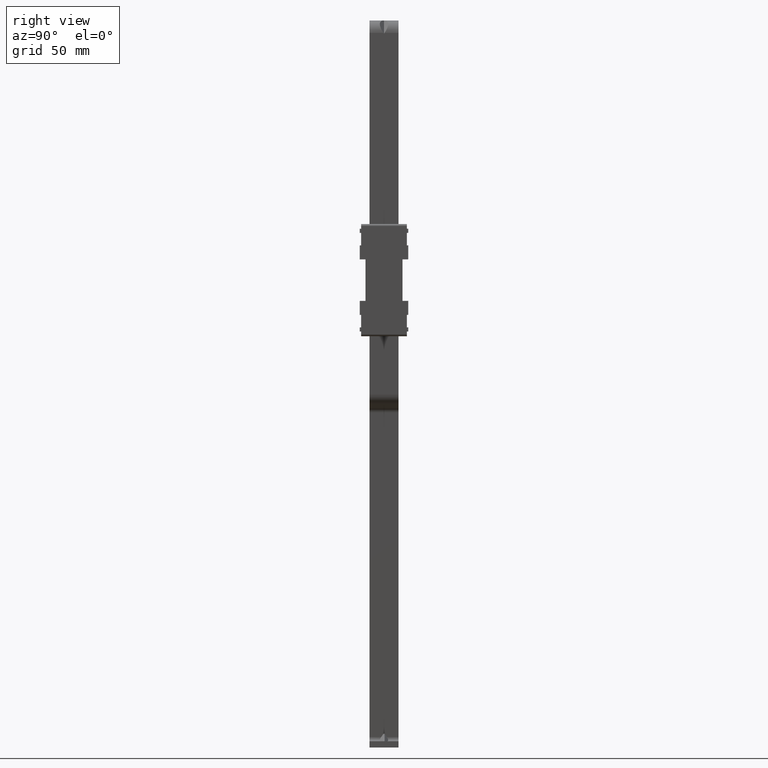
[diagram: clean part render]
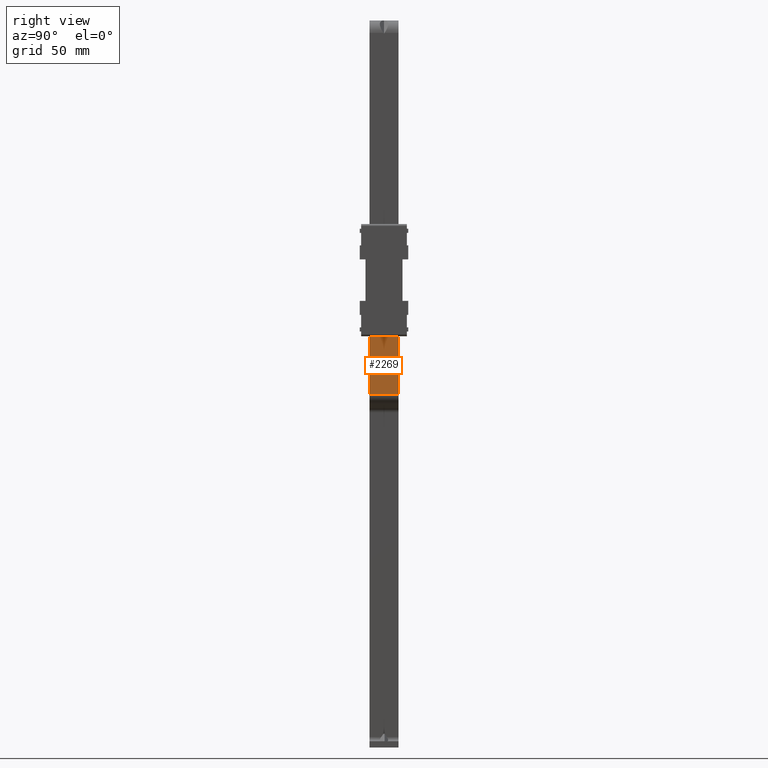
[diagram: same view with one face highlighted and labeled with its STEP entity id]
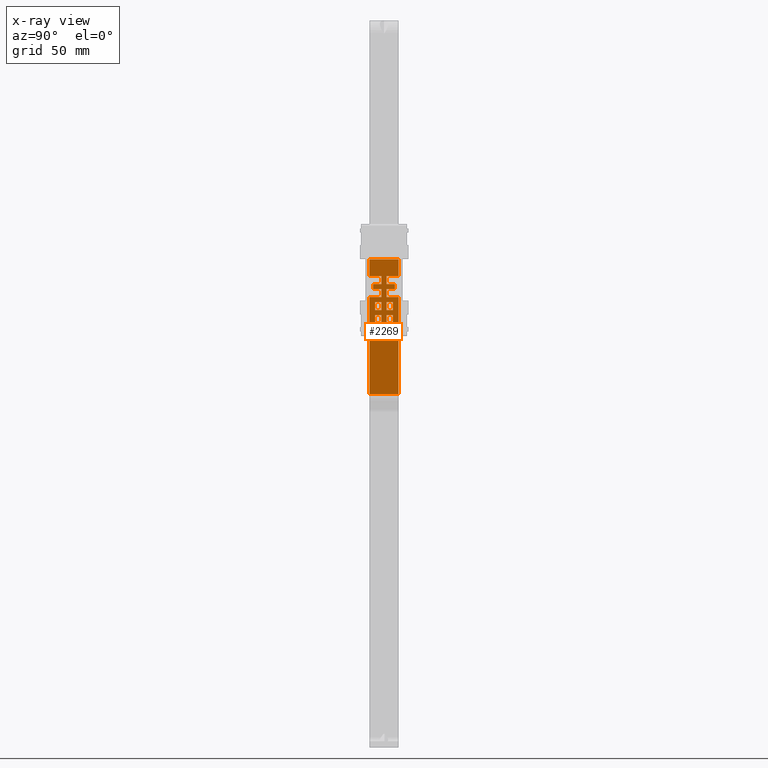
[diagram: x-ray of the same camera — body ghosted, the highlighted face saturated]
A machine part, right view. The second image highlights one B-rep face of the part: STEP entity #2269.
The next image is the same camera in x-ray: the body ghosted, the highlighted face saturated — about 0% of this face is hidden behind the body in this view.
In plain terms, the highlighted face is a freeform B-spline surface patch.
Its self-contained STEP definition (entity closure, byte-faithful):
#523=CARTESIAN_POINT('',(-8.900000041267221,-4.250000000000000,-14.460010971910920));
#524=VERTEX_POINT('',#523);
#530=CARTESIAN_POINT('',(-8.900000041267230,-1.250000000000000,-14.460010971910920));
#531=VERTEX_POINT('',#530);
#532=CARTESIAN_POINT('',(-8.900000041267230,-1.250000000000000,-14.460010971910920));
#533=CARTESIAN_POINT('',(-8.900000041267221,-4.250000000000000,-14.460010971910920));
#534=QUASI_UNIFORM_CURVE('',1,(#532,#533),.UNSPECIFIED.,.F.,.U.);
#535=EDGE_CURVE('',#531,#524,#534,.T.);
#558=CARTESIAN_POINT('',(-8.900000041267230,-1.250000000000000,-10.660010971910900));
#559=VERTEX_POINT('',#558);
#560=CARTESIAN_POINT('',(-8.900000041267230,-1.250000000000000,-10.660010971910900));
#561=CARTESIAN_POINT('',(-8.900000041267230,-1.250000000000000,-14.460010971910920));
#562=QUASI_UNIFORM_CURVE('',1,(#560,#561),.UNSPECIFIED.,.F.,.U.);
#563=EDGE_CURVE('',#559,#531,#562,.T.);
#586=CARTESIAN_POINT('',(-8.900000041267230,-4.250000000000000,-10.660010971910900));
#587=VERTEX_POINT('',#586);
#588=CARTESIAN_POINT('',(-8.900000041267230,-4.250000000000000,-10.660010971910900));
#589=CARTESIAN_POINT('',(-8.900000041267230,-1.250000000000000,-10.660010971910900));
#590=QUASI_UNIFORM_CURVE('',1,(#588,#589),.UNSPECIFIED.,.F.,.U.);
#591=EDGE_CURVE('',#587,#559,#590,.T.);
#612=CARTESIAN_POINT('',(-8.900000041267221,-4.250000000000000,-14.460010971910920));
#613=CARTESIAN_POINT('',(-8.900000041267230,-4.250000000000000,-10.660010971910900));
#614=QUASI_UNIFORM_CURVE('',1,(#612,#613),.UNSPECIFIED.,.F.,.U.);
#615=EDGE_CURVE('',#524,#587,#614,.T.);
#635=CARTESIAN_POINT('',(-8.900000041267221,1.250000000000084,-14.460010971910901));
#636=VERTEX_POINT('',#635);
#642=CARTESIAN_POINT('',(-8.900000041267230,4.250000000000000,-14.460010971910920));
#643=VERTEX_POINT('',#642);
#644=CARTESIAN_POINT('',(-8.900000041267230,4.250000000000000,-14.460010971910920));
#645=CARTESIAN_POINT('',(-8.900000041267221,1.250000000000084,-14.460010971910901));
#646=QUASI_UNIFORM_CURVE('',1,(#644,#645),.UNSPECIFIED.,.F.,.U.);
#647=EDGE_CURVE('',#643,#636,#646,.T.);
#670=CARTESIAN_POINT('',(-8.900000041267230,4.250000000000000,-10.660010971910900));
#671=VERTEX_POINT('',#670);
#672=CARTESIAN_POINT('',(-8.900000041267230,4.250000000000000,-10.660010971910900));
#673=CARTESIAN_POINT('',(-8.900000041267230,4.250000000000000,-14.460010971910920));
#674=QUASI_UNIFORM_CURVE('',1,(#672,#673),.UNSPECIFIED.,.F.,.U.);
#675=EDGE_CURVE('',#671,#643,#674,.T.);
#698=CARTESIAN_POINT('',(-8.900000041267230,1.250000000000000,-10.660010971910900));
#699=VERTEX_POINT('',#698);
#700=CARTESIAN_POINT('',(-8.900000041267230,1.250000000000000,-10.660010971910900));
#701=CARTESIAN_POINT('',(-8.900000041267230,4.250000000000000,-10.660010971910900));
#702=QUASI_UNIFORM_CURVE('',1,(#700,#701),.UNSPECIFIED.,.F.,.U.);
#703=EDGE_CURVE('',#699,#671,#702,.T.);
#724=CARTESIAN_POINT('',(-8.900000041267221,1.250000000000084,-14.460010971910901));
#725=CARTESIAN_POINT('',(-8.900000041267230,1.250000000000000,-10.660010971910900));
#726=QUASI_UNIFORM_CURVE('',1,(#724,#725),.UNSPECIFIED.,.F.,.U.);
#727=EDGE_CURVE('',#636,#699,#726,.T.);
#747=CARTESIAN_POINT('',(-8.900000041267221,4.250000000000000,-20.740010971910898));
#748=VERTEX_POINT('',#747);
#754=CARTESIAN_POINT('',(-8.900000041267230,4.250000000000000,-16.940010971910901));
#755=VERTEX_POINT('',#754);
#756=CARTESIAN_POINT('',(-8.900000041267230,4.250000000000000,-16.940010971910901));
#757=CARTESIAN_POINT('',(-8.900000041267221,4.250000000000000,-20.740010971910898));
#758=QUASI_UNIFORM_CURVE('',1,(#756,#757),.UNSPECIFIED.,.F.,.U.);
#759=EDGE_CURVE('',#755,#748,#758,.T.);
#782=CARTESIAN_POINT('',(-8.900000041267230,1.250000000000000,-16.940010971910901));
#783=VERTEX_POINT('',#782);
#784=CARTESIAN_POINT('',(-8.900000041267230,1.250000000000000,-16.940010971910901));
#785=CARTESIAN_POINT('',(-8.900000041267230,4.250000000000000,-16.940010971910901));
#786=QUASI_UNIFORM_CURVE('',1,(#784,#785),.UNSPECIFIED.,.F.,.U.);
#787=EDGE_CURVE('',#783,#755,#786,.T.);
#810=CARTESIAN_POINT('',(-8.900000041267230,1.250000000000000,-20.740010971910898));
#811=VERTEX_POINT('',#810);
#812=CARTESIAN_POINT('',(-8.900000041267230,1.250000000000000,-20.740010971910898));
#813=CARTESIAN_POINT('',(-8.900000041267230,1.250000000000000,-16.940010971910901));
#814=QUASI_UNIFORM_CURVE('',1,(#812,#813),.UNSPECIFIED.,.F.,.U.);
#815=EDGE_CURVE('',#811,#783,#814,.T.);
#836=CARTESIAN_POINT('',(-8.900000041267221,4.250000000000000,-20.740010971910898));
#837=CARTESIAN_POINT('',(-8.900000041267230,1.250000000000000,-20.740010971910898));
#838=QUASI_UNIFORM_CURVE('',1,(#836,#837),.UNSPECIFIED.,.F.,.U.);
#839=EDGE_CURVE('',#748,#811,#838,.T.);
#859=CARTESIAN_POINT('',(-8.900000041267221,-4.250000000000000,-16.940010971910901));
#860=VERTEX_POINT('',#859);
#866=CARTESIAN_POINT('',(-8.900000041267230,-4.250000000000000,-20.740010971910898));
#867=VERTEX_POINT('',#866);
#868=CARTESIAN_POINT('',(-8.900000041267221,-4.250000000000000,-16.940010971910901));
#869=CARTESIAN_POINT('',(-8.900000041267230,-4.250000000000000,-20.740010971910898));
#870=QUASI_UNIFORM_CURVE('',1,(#868,#869),.UNSPECIFIED.,.F.,.U.);
#871=EDGE_CURVE('',#860,#867,#870,.T.);
#893=CARTESIAN_POINT('',(-8.900000041267230,-1.250000000000000,-16.940010971910901));
#894=VERTEX_POINT('',#893);
#900=CARTESIAN_POINT('',(-8.900000041267230,-1.250000000000000,-16.940010971910901));
#901=CARTESIAN_POINT('',(-8.900000041267221,-4.250000000000000,-16.940010971910901));
#902=QUASI_UNIFORM_CURVE('',1,(#900,#901),.UNSPECIFIED.,.F.,.U.);
#903=EDGE_CURVE('',#894,#860,#902,.T.);
#921=CARTESIAN_POINT('',(-8.900000041267230,-1.250000000000000,-20.740010971910898));
#922=VERTEX_POINT('',#921);
#928=CARTESIAN_POINT('',(-8.900000041267230,-1.250000000000000,-20.740010971910898));
#929=CARTESIAN_POINT('',(-8.900000041267230,-1.250000000000000,-16.940010971910901));
#930=QUASI_UNIFORM_CURVE('',1,(#928,#929),.UNSPECIFIED.,.F.,.U.);
#931=EDGE_CURVE('',#922,#894,#930,.T.);
#948=CARTESIAN_POINT('',(-8.900000041267230,-4.250000000000000,-20.740010971910898));
#949=CARTESIAN_POINT('',(-8.900000041267230,-1.250000000000000,-20.740010971910898));
#950=QUASI_UNIFORM_CURVE('',1,(#948,#949),.UNSPECIFIED.,.F.,.U.);
#951=EDGE_CURVE('',#867,#922,#950,.T.);
#971=CARTESIAN_POINT('',(-8.900000041267221,-1.249999999999972,-27.020010971910899));
#972=VERTEX_POINT('',#971);
#978=CARTESIAN_POINT('',(-8.900000041267230,-1.250000000000000,-23.220010971910899));
#979=VERTEX_POINT('',#978);
#980=CARTESIAN_POINT('',(-8.900000041267221,-1.249999999999972,-27.020010971910899));
#981=CARTESIAN_POINT('',(-8.900000041267230,-1.250000000000000,-23.220010971910899));
#982=QUASI_UNIFORM_CURVE('',1,(#980,#981),.UNSPECIFIED.,.F.,.U.);
#983=EDGE_CURVE('',#972,#979,#982,.T.);
#1005=CARTESIAN_POINT('',(-8.900000041267230,-4.250000000000000,-27.020010971910899));
#1006=VERTEX_POINT('',#1005);
#1012=CARTESIAN_POINT('',(-8.900000041267230,-4.250000000000000,-27.020010971910899));
#1013=CARTESIAN_POINT('',(-8.900000041267221,-1.249999999999972,-27.020010971910899));
#1014=QUASI_UNIFORM_CURVE('',1,(#1012,#1013),.UNSPECIFIED.,.F.,.U.);
#1015=EDGE_CURVE('',#1006,#972,#1014,.T.);
#1033=CARTESIAN_POINT('',(-8.900000041267230,-4.250000000000000,-23.220010971910899));
#1034=VERTEX_POINT('',#1033);
#1040=CARTESIAN_POINT('',(-8.900000041267230,-4.250000000000000,-23.220010971910899));
#1041=CARTESIAN_POINT('',(-8.900000041267230,-4.250000000000000,-27.020010971910899));
#1042=QUASI_UNIFORM_CURVE('',1,(#1040,#1041),.UNSPECIFIED.,.F.,.U.);
#1043=EDGE_CURVE('',#1034,#1006,#1042,.T.);
#1060=CARTESIAN_POINT('',(-8.900000041267230,-1.250000000000000,-23.220010971910899));
#1061=CARTESIAN_POINT('',(-8.900000041267230,-4.250000000000000,-23.220010971910899));
#1062=QUASI_UNIFORM_CURVE('',1,(#1060,#1061),.UNSPECIFIED.,.F.,.U.);
#1063=EDGE_CURVE('',#979,#1034,#1062,.T.);
#1083=CARTESIAN_POINT('',(-8.900000041267221,1.250000000000084,-27.020010971910899));
#1084=VERTEX_POINT('',#1083);
#1090=CARTESIAN_POINT('',(-8.900000041267230,4.250000000000000,-27.020010971910899));
#1091=VERTEX_POINT('',#1090);
#1092=CARTESIAN_POINT('',(-8.900000041267221,1.250000000000084,-27.020010971910899));
#1093=CARTESIAN_POINT('',(-8.900000041267230,4.250000000000000,-27.020010971910899));
#1094=QUASI_UNIFORM_CURVE('',1,(#1092,#1093),.UNSPECIFIED.,.F.,.U.);
#1095=EDGE_CURVE('',#1084,#1091,#1094,.T.);
#1117=CARTESIAN_POINT('',(-8.900000041267230,1.250000000000000,-23.220010971910899));
#1118=VERTEX_POINT('',#1117);
#1124=CARTESIAN_POINT('',(-8.900000041267230,1.250000000000000,-23.220010971910899));
#1125=CARTESIAN_POINT('',(-8.900000041267221,1.250000000000084,-27.020010971910899));
#1126=QUASI_UNIFORM_CURVE('',1,(#1124,#1125),.UNSPECIFIED.,.F.,.U.);
#1127=EDGE_CURVE('',#1118,#1084,#1126,.T.);
#1145=CARTESIAN_POINT('',(-8.900000041267230,4.250000000000000,-23.220010971910899));
#1146=VERTEX_POINT('',#1145);
#1152=CARTESIAN_POINT('',(-8.900000041267230,4.250000000000000,-23.220010971910899));
#1153=CARTESIAN_POINT('',(-8.900000041267230,1.250000000000000,-23.220010971910899));
#1154=QUASI_UNIFORM_CURVE('',1,(#1152,#1153),.UNSPECIFIED.,.F.,.U.);
#1155=EDGE_CURVE('',#1146,#1118,#1154,.T.);
#1172=CARTESIAN_POINT('',(-8.900000041267230,4.250000000000000,-27.020010971910899));
#1173=CARTESIAN_POINT('',(-8.900000041267230,4.250000000000000,-23.220010971910899));
#1174=QUASI_UNIFORM_CURVE('',1,(#1172,#1173),.UNSPECIFIED.,.F.,.U.);
#1175=EDGE_CURVE('',#1091,#1146,#1174,.T.);
#1195=CARTESIAN_POINT('',(-8.900000041267230,1.250000000000000,-1.900010971910910));
#1196=VERTEX_POINT('',#1195);
#1202=CARTESIAN_POINT('',(-8.900000041267230,5.250000000000000,-1.900010971910910));
#1203=VERTEX_POINT('',#1202);
#1204=CARTESIAN_POINT('',(-8.900000041267230,5.250000000000000,-1.900010971910910));
#1205=CARTESIAN_POINT('',(-8.900000041267230,1.250000000000000,-1.900010971910910));
#1206=QUASI_UNIFORM_CURVE('',1,(#1204,#1205),.UNSPECIFIED.,.F.,.U.);
#1207=EDGE_CURVE('',#1203,#1196,#1206,.T.);
#1230=CARTESIAN_POINT('',(-8.900000041267230,5.250000000000000,-4.380010971910910));
#1231=VERTEX_POINT('',#1230);
#1232=CARTESIAN_POINT('',(-8.900000041267230,5.250000000000000,-4.380010971910910));
#1233=CARTESIAN_POINT('',(-8.900000041267230,5.250000000000000,-1.900010971910910));
#1234=QUASI_UNIFORM_CURVE('',1,(#1232,#1233),.UNSPECIFIED.,.F.,.U.);
#1235=EDGE_CURVE('',#1231,#1203,#1234,.T.);
#1258=CARTESIAN_POINT('',(-8.900000041267230,1.250000000000000,-4.380010971910910));
#1259=VERTEX_POINT('',#1258);
#1260=CARTESIAN_POINT('',(-8.900000041267230,1.250000000000000,-4.380010971910910));
#1261=CARTESIAN_POINT('',(-8.900000041267230,5.250000000000000,-4.380010971910910));
#1262=QUASI_UNIFORM_CURVE('',1,(#1260,#1261),.UNSPECIFIED.,.F.,.U.);
#1263=EDGE_CURVE('',#1259,#1231,#1262,.T.);
#1286=CARTESIAN_POINT('',(-8.900000041267230,1.250000000000000,-8.180010971910910));
#1287=VERTEX_POINT('',#1286);
#1288=CARTESIAN_POINT('',(-8.900000041267230,1.250000000000000,-8.180010971910910));
#1289=CARTESIAN_POINT('',(-8.900000041267230,1.250000000000000,-4.380010971910910));
#1290=QUASI_UNIFORM_CURVE('',1,(#1288,#1289),.UNSPECIFIED.,.F.,.U.);
#1291=EDGE_CURVE('',#1287,#1259,#1290,.T.);
#1314=CARTESIAN_POINT('',(-8.900000041267221,7.000000332482160,-8.180010971910910));
#1315=VERTEX_POINT('',#1314);
#1316=CARTESIAN_POINT('',(-8.900000041267221,7.000000332482160,-8.180010971910910));
#1317=CARTESIAN_POINT('',(-8.900000041267230,1.250000000000000,-8.180010971910910));
#1318=QUASI_UNIFORM_CURVE('',1,(#1316,#1317),.UNSPECIFIED.,.F.,.U.);
#1319=EDGE_CURVE('',#1315,#1287,#1318,.T.);
#1343=CARTESIAN_POINT('',(-8.900000041267230,7.000000332482220,1.899989028089090));
#1344=VERTEX_POINT('',#1343);
#1350=CARTESIAN_POINT('',(-8.900000041267230,1.250000000000000,1.899989028089090));
#1351=VERTEX_POINT('',#1350);
#1352=CARTESIAN_POINT('',(-8.900000041267230,1.250000000000000,1.899989028089090));
#1353=CARTESIAN_POINT('',(-8.900000041267230,7.000000332482220,1.899989028089090));
#1354=QUASI_UNIFORM_CURVE('',1,(#1352,#1353),.UNSPECIFIED.,.F.,.U.);
#1355=EDGE_CURVE('',#1351,#1344,#1354,.T.);
#1376=CARTESIAN_POINT('',(-8.900000041267230,1.250000000000000,-1.900010971910910));
#1377=CARTESIAN_POINT('',(-8.900000041267230,1.250000000000000,1.899989028089090));
#1378=QUASI_UNIFORM_CURVE('',1,(#1376,#1377),.UNSPECIFIED.,.F.,.U.);
#1379=EDGE_CURVE('',#1196,#1351,#1378,.T.);
#1399=CARTESIAN_POINT('',(-8.900000041267230,-1.250000000000000,1.899989028089090));
#1400=VERTEX_POINT('',#1399);
#1406=CARTESIAN_POINT('',(-8.900000041267221,-7.000000332482160,1.899989028089090));
#1407=VERTEX_POINT('',#1406);
#1408=CARTESIAN_POINT('',(-8.900000041267230,-1.250000000000000,1.899989028089090));
#1409=CARTESIAN_POINT('',(-8.900000041267221,-7.000000332482160,1.899989028089090));
#1410=QUASI_UNIFORM_CURVE('',1,(#1408,#1409),.UNSPECIFIED.,.F.,.U.);
#1411=EDGE_CURVE('',#1400,#1407,#1410,.T.);
#1433=CARTESIAN_POINT('',(-8.900000041267230,-1.250000000000000,-1.900010971910910));
#1434=VERTEX_POINT('',#1433);
#1440=CARTESIAN_POINT('',(-8.900000041267230,-1.250000000000000,-1.900010971910910));
#1441=CARTESIAN_POINT('',(-8.900000041267230,-1.250000000000000,1.899989028089090));
#1442=QUASI_UNIFORM_CURVE('',1,(#1440,#1441),.UNSPECIFIED.,.F.,.U.);
#1443=EDGE_CURVE('',#1434,#1400,#1442,.T.);
#1461=CARTESIAN_POINT('',(-8.900000041267230,-5.250000000000000,-1.900010971910910));
#1462=VERTEX_POINT('',#1461);
#1468=CARTESIAN_POINT('',(-8.900000041267230,-5.250000000000000,-1.900010971910910));
#1469=CARTESIAN_POINT('',(-8.900000041267230,-1.250000000000000,-1.900010971910910));
#1470=QUASI_UNIFORM_CURVE('',1,(#1468,#1469),.UNSPECIFIED.,.F.,.U.);
#1471=EDGE_CURVE('',#1462,#1434,#1470,.T.);
#1489=CARTESIAN_POINT('',(-8.900000041267230,-5.250000000000000,-4.380010971910910));
#1490=VERTEX_POINT('',#1489);
#1496=CARTESIAN_POINT('',(-8.900000041267230,-5.250000000000000,-4.380010971910910));
#1497=CARTESIAN_POINT('',(-8.900000041267230,-5.250000000000000,-1.900010971910910));
#1498=QUASI_UNIFORM_CURVE('',1,(#1496,#1497),.UNSPECIFIED.,.F.,.U.);
#1499=EDGE_CURVE('',#1490,#1462,#1498,.T.);
#1517=CARTESIAN_POINT('',(-8.900000041267230,-1.250000000000000,-4.380010971910910));
#1518=VERTEX_POINT('',#1517);
#1524=CARTESIAN_POINT('',(-8.900000041267230,-1.250000000000000,-4.380010971910910));
#1525=CARTESIAN_POINT('',(-8.900000041267230,-5.250000000000000,-4.380010971910910));
#1526=QUASI_UNIFORM_CURVE('',1,(#1524,#1525),.UNSPECIFIED.,.F.,.U.);
#1527=EDGE_CURVE('',#1518,#1490,#1526,.T.);
#1545=CARTESIAN_POINT('',(-8.900000041267230,-1.250000000000000,-8.180010971910910));
#1546=VERTEX_POINT('',#1545);
#1552=CARTESIAN_POINT('',(-8.900000041267230,-1.250000000000000,-8.180010971910910));
#1553=CARTESIAN_POINT('',(-8.900000041267230,-1.250000000000000,-4.380010971910910));
#1554=QUASI_UNIFORM_CURVE('',1,(#1552,#1553),.UNSPECIFIED.,.F.,.U.);
#1555=EDGE_CURVE('',#1546,#1518,#1554,.T.);
#1573=CARTESIAN_POINT('',(-8.900000041267230,-7.000000332482220,-8.180010971910910));
#1574=VERTEX_POINT('',#1573);
#1580=CARTESIAN_POINT('',(-8.900000041267230,-7.000000332482220,-8.180010971910910));
#1581=CARTESIAN_POINT('',(-8.900000041267230,-1.250000000000000,-8.180010971910910));
#1582=QUASI_UNIFORM_CURVE('',1,(#1580,#1581),.UNSPECIFIED.,.F.,.U.);
#1583=EDGE_CURVE('',#1574,#1546,#1582,.T.);
#1859=CARTESIAN_POINT('',(-8.900000041267221,-7.000000332482160,9.999989028089091));
#1860=VERTEX_POINT('',#1859);
#1868=CARTESIAN_POINT('',(-8.900000041267221,7.000000332482160,9.999989028089091));
#1869=VERTEX_POINT('',#1868);
#1870=CARTESIAN_POINT('',(-8.900000041267221,7.000000332482160,9.999989028089091));
#1871=CARTESIAN_POINT('',(-8.900000041267221,-7.000000332482160,9.999989028089091));
#1872=QUASI_UNIFORM_CURVE('',1,(#1870,#1871),.UNSPECIFIED.,.F.,.U.);
#1873=EDGE_CURVE('',#1869,#1860,#1872,.T.);
#1906=CARTESIAN_POINT('',(-8.900000041267269,-7.000000332482160,-55.014721238818602));
#1907=VERTEX_POINT('',#1906);
#1928=CARTESIAN_POINT('',(-8.900000041267269,7.000000332482160,-55.014721238818602));
#1929=VERTEX_POINT('',#1928);
#1943=CARTESIAN_POINT('',(-8.900000041267269,7.000000332482160,-55.014721238818602));
#1944=CARTESIAN_POINT('',(-8.900000041267269,-7.000000332482160,-55.014721238818602));
#1945=QUASI_UNIFORM_CURVE('',1,(#1943,#1944),.UNSPECIFIED.,.F.,.U.);
#1946=EDGE_CURVE('',#1929,#1907,#1945,.T.);
#2043=CARTESIAN_POINT('',(-8.900000041267221,-7.000000332482160,1.899989028089090));
#2044=CARTESIAN_POINT('',(-8.900000041267221,-7.000000332482160,9.999989028089091));
#2045=QUASI_UNIFORM_CURVE('',1,(#2043,#2044),.UNSPECIFIED.,.F.,.U.);
#2046=EDGE_CURVE('',#1407,#1860,#2045,.T.);
#2090=CARTESIAN_POINT('',(-8.900000041267269,-7.000000332482160,-55.014721238818602));
#2091=CARTESIAN_POINT('',(-8.900000041267230,-7.000000332482220,-8.180010971910910));
#2092=QUASI_UNIFORM_CURVE('',1,(#2090,#2091),.UNSPECIFIED.,.F.,.U.);
#2093=EDGE_CURVE('',#1907,#1574,#2092,.T.);
#2119=CARTESIAN_POINT('',(-8.900000041267230,7.000000332482220,1.899989028089090));
#2120=CARTESIAN_POINT('',(-8.900000041267221,7.000000332482160,9.999989028089091));
#2121=QUASI_UNIFORM_CURVE('',1,(#2119,#2120),.UNSPECIFIED.,.F.,.U.);
#2122=EDGE_CURVE('',#1344,#1869,#2121,.T.);
#2202=CARTESIAN_POINT('',(-8.900000041267221,-7.699300469984467,13.247473679910000));
#2203=CARTESIAN_POINT('',(-8.900000041267221,-7.699300469984467,-58.262207634469952));
#2204=CARTESIAN_POINT('',(-8.900000041267221,7.699300720323986,13.247473679910000));
#2205=CARTESIAN_POINT('',(-8.900000041267221,7.699300720323986,-58.262207634469952));
#2206=B_SPLINE_SURFACE_WITH_KNOTS('',1,1,((#2202,#2204),(#2203,#2205)),.UNSPECIFIED.,.F.,.F.,.U.,(2,2),(2,2),(0.0,71.509681314379947),(0.0,15.398601190308449),.UNSPECIFIED.);
#2207=ORIENTED_EDGE('',*,*,#1355,.T.);
#2208=ORIENTED_EDGE('',*,*,#2122,.T.);
#2209=ORIENTED_EDGE('',*,*,#1873,.T.);
#2210=ORIENTED_EDGE('',*,*,#2046,.F.);
#2211=ORIENTED_EDGE('',*,*,#1411,.F.);
#2212=ORIENTED_EDGE('',*,*,#1443,.F.);
#2213=ORIENTED_EDGE('',*,*,#1471,.F.);
#2214=ORIENTED_EDGE('',*,*,#1499,.F.);
#2215=ORIENTED_EDGE('',*,*,#1527,.F.);
#2216=ORIENTED_EDGE('',*,*,#1555,.F.);
#2217=ORIENTED_EDGE('',*,*,#1583,.F.);
#2218=ORIENTED_EDGE('',*,*,#2093,.F.);
#2219=ORIENTED_EDGE('',*,*,#1946,.F.);
#2220=CARTESIAN_POINT('',(-8.900000041267269,7.000000332482160,-55.014721238818602));
#2221=CARTESIAN_POINT('',(-8.900000041267221,7.000000332482160,-8.180010971910910));
#2222=QUASI_UNIFORM_CURVE('',1,(#2220,#2221),.UNSPECIFIED.,.F.,.U.);
#2223=EDGE_CURVE('',#1929,#1315,#2222,.T.);
#2224=ORIENTED_EDGE('',*,*,#2223,.T.);
#2225=ORIENTED_EDGE('',*,*,#1319,.T.);
#2226=ORIENTED_EDGE('',*,*,#1291,.T.);
#2227=ORIENTED_EDGE('',*,*,#1263,.T.);
#2228=ORIENTED_EDGE('',*,*,#1235,.T.);
#2229=ORIENTED_EDGE('',*,*,#1207,.T.);
#2230=ORIENTED_EDGE('',*,*,#1379,.T.);
#2231=EDGE_LOOP('',(#2207,#2208,#2209,#2210,#2211,#2212,#2213,#2214,#2215,#2216,#2217,#2218,#2219,#2224,#2225,#2226,#2227,#2228,#2229,#2230));
#2232=FACE_OUTER_BOUND('',#2231,.T.);
#2233=ORIENTED_EDGE('',*,*,#727,.T.);
#2234=ORIENTED_EDGE('',*,*,#703,.T.);
#2235=ORIENTED_EDGE('',*,*,#675,.T.);
#2236=ORIENTED_EDGE('',*,*,#647,.T.);
#2237=EDGE_LOOP('',(#2233,#2234,#2235,#2236));
#2238=FACE_BOUND('',#2237,.T.);
#2239=ORIENTED_EDGE('',*,*,#839,.T.);
#2240=ORIENTED_EDGE('',*,*,#815,.T.);
#2241=ORIENTED_EDGE('',*,*,#787,.T.);
#2242=ORIENTED_EDGE('',*,*,#759,.T.);
#2243=EDGE_LOOP('',(#2239,#2240,#2241,#2242));
#2244=FACE_BOUND('',#2243,.T.);
#2245=ORIENTED_EDGE('',*,*,#1043,.F.);
#2246=ORIENTED_EDGE('',*,*,#1063,.F.);
#2247=ORIENTED_EDGE('',*,*,#983,.F.);
#2248=ORIENTED_EDGE('',*,*,#1015,.F.);
#2249=EDGE_LOOP('',(#2245,#2246,#2247,#2248));
#2250=FACE_BOUND('',#2249,.T.);
#2251=ORIENTED_EDGE('',*,*,#615,.T.);
#2252=ORIENTED_EDGE('',*,*,#591,.T.);
#2253=ORIENTED_EDGE('',*,*,#563,.T.);
#2254=ORIENTED_EDGE('',*,*,#535,.T.);
#2255=EDGE_LOOP('',(#2251,#2252,#2253,#2254));
#2256=FACE_BOUND('',#2255,.T.);
#2257=ORIENTED_EDGE('',*,*,#1155,.F.);
#2258=ORIENTED_EDGE('',*,*,#1175,.F.);
#2259=ORIENTED_EDGE('',*,*,#1095,.F.);
#2260=ORIENTED_EDGE('',*,*,#1127,.F.);
#2261=EDGE_LOOP('',(#2257,#2258,#2259,#2260));
#2262=FACE_BOUND('',#2261,.T.);
#2263=ORIENTED_EDGE('',*,*,#931,.F.);
#2264=ORIENTED_EDGE('',*,*,#951,.F.);
#2265=ORIENTED_EDGE('',*,*,#871,.F.);
#2266=ORIENTED_EDGE('',*,*,#903,.F.);
#2267=EDGE_LOOP('',(#2263,#2264,#2265,#2266));
#2268=FACE_BOUND('',#2267,.T.);
#2269=ADVANCED_FACE('',(#2232,#2238,#2244,#2250,#2256,#2262,#2268),#2206,.T.);